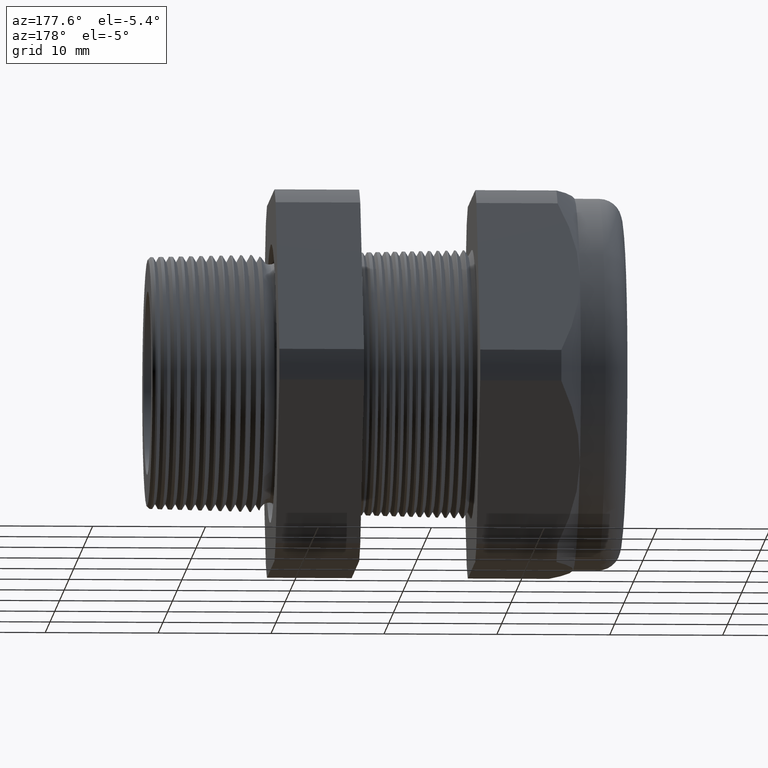
[diagram: clean part render]
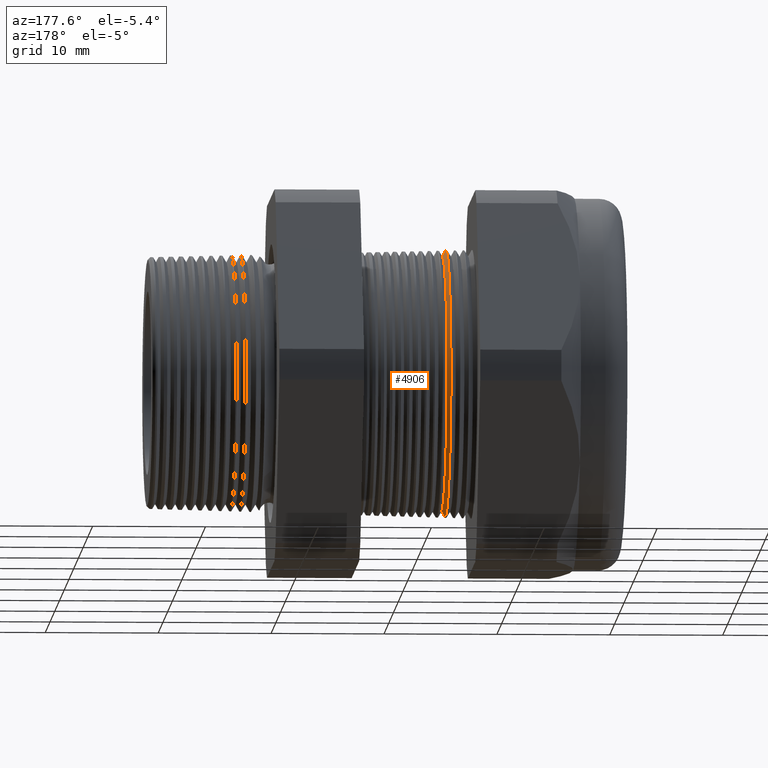
[diagram: same view with one face highlighted and labeled with its STEP entity id]
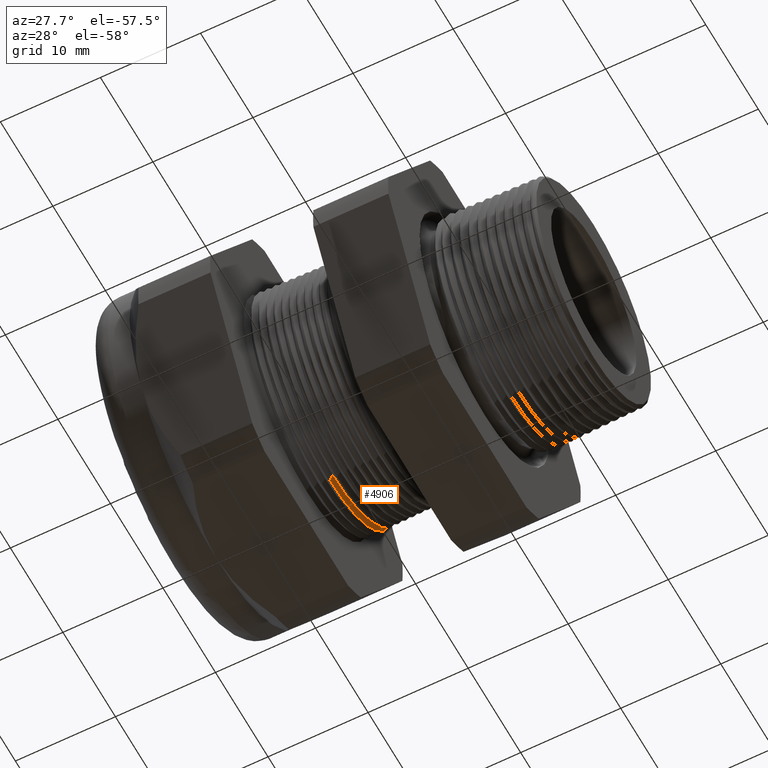
[diagram: same view with one face highlighted and labeled with its STEP entity id]
A machine part, auxiliary view. The second image highlights one B-rep face of the part: STEP entity #4906.
A second angle (auxiliary view) of the same face is appended — the face is thin or edge-on in the first view.
In plain terms, the highlighted conical surface has half-angle 61.5 deg.
Its self-contained STEP definition (entity closure, byte-faithful):
#135 = EDGE_CURVE ( 'NONE', #4878, #4896, #1261, .T. ) ;
#1258 = DIRECTION ( 'NONE',  ( -0.4771587602596201200, 0.0000000000000000000, 0.8788171126619589400 ) ) ;
#1259 = VECTOR ( 'NONE', #1258, 39.37007874015748100 ) ;
#1260 = CARTESIAN_POINT ( 'NONE',  ( -0.9203149606299212400, 0.0000000000000000000, 0.4699999999999999700 ) ) ;
#1261 = LINE ( 'NONE', #1260, #1259 ) ;
#3307 = CARTESIAN_POINT ( 'NONE',  ( -0.9065405736958172000, 0.0000000000000000000, 0.4446307351718083400 ) ) ;
#3317 = CARTESIAN_POINT ( 'NONE',  ( -0.9065405736958172000, 5.585859050133028000E-017, -0.4446307351718083400 ) ) ;
#3328 = DIRECTION ( 'NONE',  ( -0.4771587602596201200, 1.076240564057387000E-016, -0.8788171126619589400 ) ) ;
#3329 = VECTOR ( 'NONE', #3328, 39.37007874015748100 ) ;
#3330 = CARTESIAN_POINT ( 'NONE',  ( -0.9203149606299212400, 5.755839955992559700E-017, -0.4699999999999999700 ) ) ;
#3331 = LINE ( 'NONE', #3330, #3329 ) ;
#3332 = CARTESIAN_POINT ( 'NONE',  ( -0.9190169035368334100, 5.727105280065575800E-017, -0.4676092762375418400 ) ) ;
#3333 = CARTESIAN_POINT ( 'NONE',  ( -0.9190169035368334100, 0.0000000000000000000, 0.4676092762375418400 ) ) ;
#3355 = DIRECTION ( 'NONE',  ( 0.0000000000000000000, 0.0000000000000000000, -1.000000000000000000 ) ) ;
#3356 = DIRECTION ( 'NONE',  ( 1.000000000000000000, 0.0000000000000000000, 0.0000000000000000000 ) ) ;
#3357 = CARTESIAN_POINT ( 'NONE',  ( -0.9065405736958172000, 0.0000000000000000000, 0.0000000000000000000 ) ) ;
#3358 = AXIS2_PLACEMENT_3D ( 'NONE', #3357, #3356, #3355 ) ;
#3359 = CIRCLE ( 'NONE', #3358, 0.4446307351718083400 ) ;
#3377 = DIRECTION ( 'NONE',  ( 0.0000000000000000000, 0.0000000000000000000, 1.000000000000000000 ) ) ;
#3378 = DIRECTION ( 'NONE',  ( -1.000000000000000000, 0.0000000000000000000, 0.0000000000000000000 ) ) ;
#3379 = CARTESIAN_POINT ( 'NONE',  ( -0.9203149606299212400, 0.0000000000000000000, 0.0000000000000000000 ) ) ;
#3380 = AXIS2_PLACEMENT_3D ( 'NONE', #3379, #3378, #3377 ) ;
#3381 = CONICAL_SURFACE ( 'NONE', #3380, 0.4699999999999999700, 1.073377489976499400 ) ;
#3382 = FACE_OUTER_BOUND ( 'NONE', #4905, .T. ) ;
#3383 = DIRECTION ( 'NONE',  ( 0.0000000000000000000, 0.0000000000000000000, 1.000000000000000000 ) ) ;
#3384 = DIRECTION ( 'NONE',  ( 1.000000000000000000, 0.0000000000000000000, 0.0000000000000000000 ) ) ;
#3385 = CARTESIAN_POINT ( 'NONE',  ( -0.9190169035368334100, 0.0000000000000000000, 0.0000000000000000000 ) ) ;
#3386 = AXIS2_PLACEMENT_3D ( 'NONE', #3385, #3384, #3383 ) ;
#3387 = CIRCLE ( 'NONE', #3386, 0.4676092762375418400 ) ;
#4873 = VERTEX_POINT ( 'NONE', #3317 ) ;
#4878 = VERTEX_POINT ( 'NONE', #3307 ) ;
#4883 = EDGE_CURVE ( 'NONE', #4873, #4878, #3359, .T. ) ;
#4893 = ORIENTED_EDGE ( 'NONE', *, *, #135, .F. ) ;
#4895 = ORIENTED_EDGE ( 'NONE', *, *, #4898, .T. ) ;
#4896 = VERTEX_POINT ( 'NONE', #3333 ) ;
#4897 = VERTEX_POINT ( 'NONE', #3332 ) ;
#4898 = EDGE_CURVE ( 'NONE', #4873, #4897, #3331, .T. ) ;
#4901 = EDGE_CURVE ( 'NONE', #4897, #4896, #3387, .T. ) ;
#4902 = ORIENTED_EDGE ( 'NONE', *, *, #4901, .T. ) ;
#4903 = ORIENTED_EDGE ( 'NONE', *, *, #4883, .F. ) ;
#4905 = EDGE_LOOP ( 'NONE', ( #4903, #4895, #4902, #4893 ) ) ;
#4906 = ADVANCED_FACE ( 'NONE', ( #3382 ), #3381, .T. ) ;